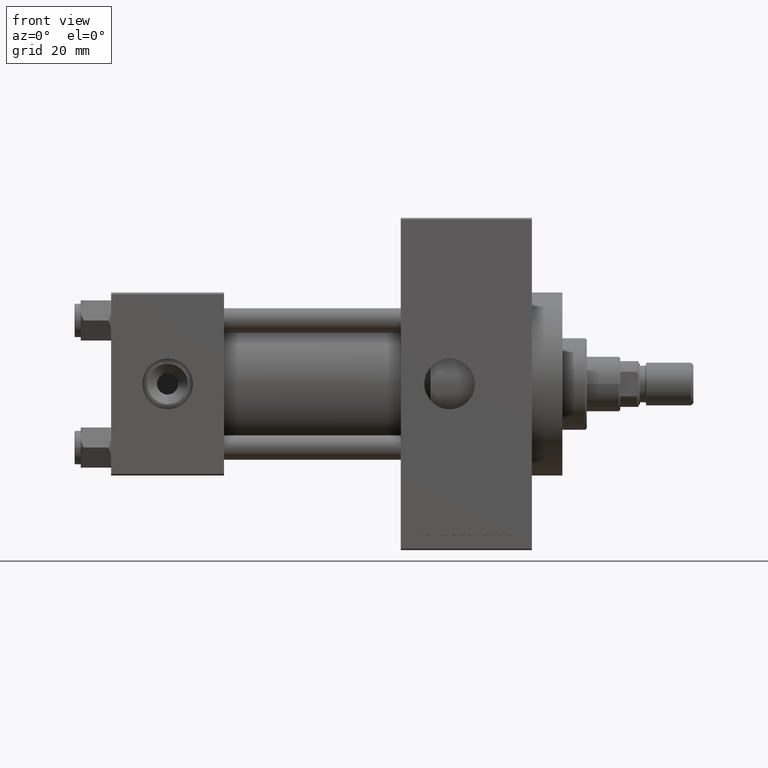
[diagram: clean part render]
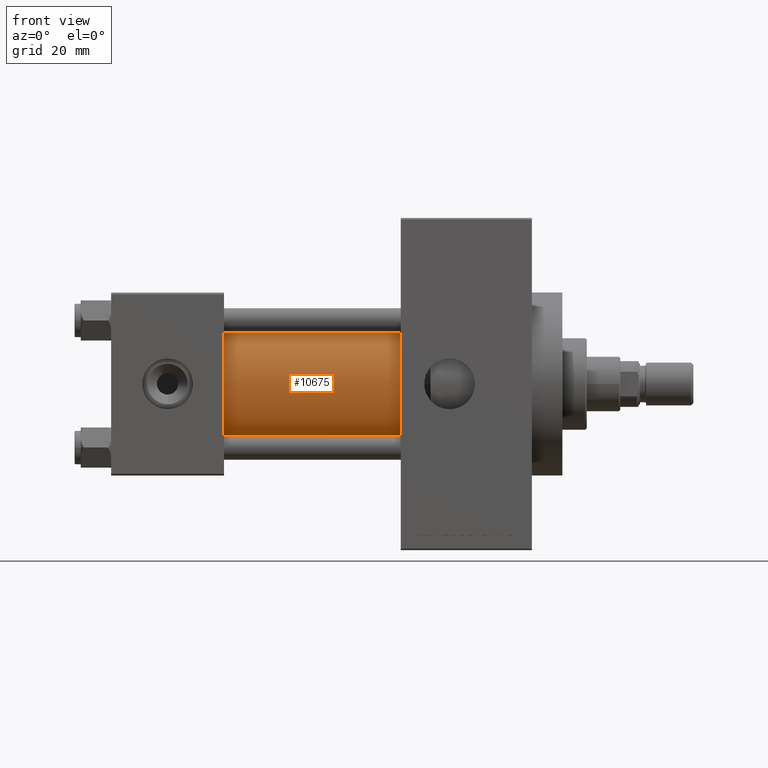
[diagram: same view with one face highlighted and labeled with its STEP entity id]
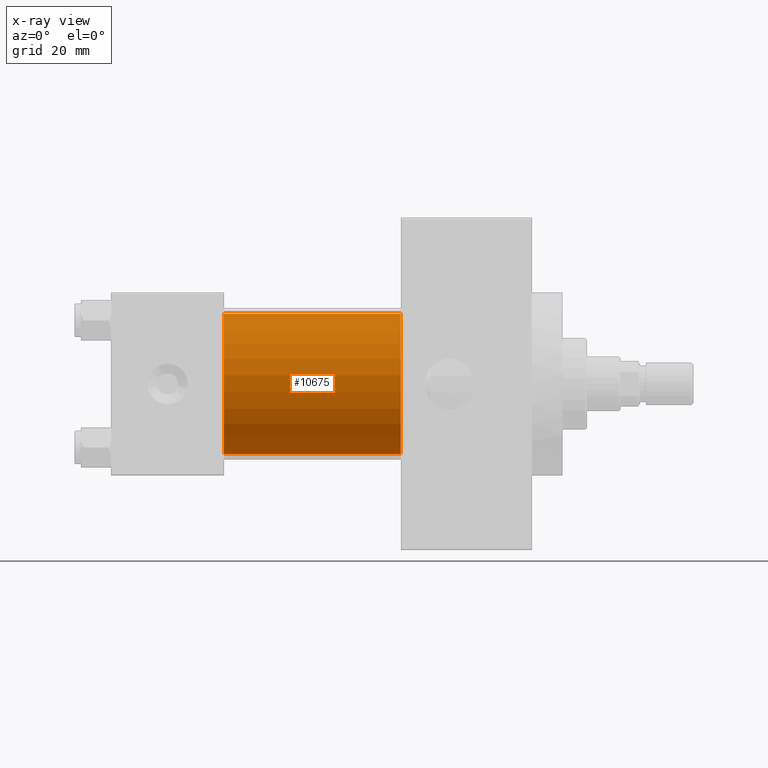
[diagram: x-ray of the same camera — body ghosted, the highlighted face saturated]
A machine part, front view. The second image highlights one B-rep face of the part: STEP entity #10675.
The next image is the same camera in x-ray: the body ghosted, the highlighted face saturated — about 0% of this face is hidden behind the body in this view.
In plain terms, the highlighted cylindrical surface (partial cylindrical patch) has radius 23 mm, axis along (-1, -0, -0).
Its self-contained STEP definition (entity closure, byte-faithful):
#2154 = ORIENTED_EDGE ( 'NONE', *, *, #40032, .F. ) ;
#3264 = VECTOR ( 'NONE', #37036, 1000.000000000000000 ) ;
#4192 = CARTESIAN_POINT ( 'NONE',  ( 95.00000000000000000, -2.602085213965210642E-15, 0.000000000000000000 ) ) ;
#4525 = DIRECTION ( 'NONE',  ( 1.000000000000000000, -0.000000000000000000, 0.000000000000000000 ) ) ;
#6715 = EDGE_LOOP ( 'NONE', ( #43450, #2154, #30871, #45339 ) ) ;
#8567 = CARTESIAN_POINT ( 'NONE',  ( 95.00000000000000000, -2.602085213965210642E-15, 0.000000000000000000 ) ) ;
#8678 = AXIS2_PLACEMENT_3D ( 'NONE', #8567, #35251, #31469 ) ;
#10590 = CARTESIAN_POINT ( 'NONE',  ( 95.00000000000000000, -2.602085213965210642E-15, 23.00000000000000000 ) ) ;
#10675 = ADVANCED_FACE ( 'NONE', ( #15254 ), #15016, .T. ) ;
#13739 = AXIS2_PLACEMENT_3D ( 'NONE', #34725, #4525, #42773 ) ;
#15016 = CYLINDRICAL_SURFACE ( 'NONE', #24098, 23.00000000000000000 ) ;
#15254 = FACE_OUTER_BOUND ( 'NONE', #6715, .T. ) ;
#21024 = CARTESIAN_POINT ( 'NONE',  ( 95.00000000000000000, 2.146024240737012665E-16, -23.00000000000000000 ) ) ;
#24098 = AXIS2_PLACEMENT_3D ( 'NONE', #4192, #46211, #30625 ) ;
#26696 = DIRECTION ( 'NONE',  ( -1.000000000000000000, -0.000000000000000000, -0.000000000000000000 ) ) ;
#30625 = DIRECTION ( 'NONE',  ( 0.000000000000000000, 0.000000000000000000, 1.000000000000000000 ) ) ;
#30733 = VERTEX_POINT ( 'NONE', #39796 ) ;
#30871 = ORIENTED_EDGE ( 'NONE', *, *, #46927, .T. ) ;
#31309 = VERTEX_POINT ( 'NONE', #21024 ) ;
#31469 = DIRECTION ( 'NONE',  ( 0.000000000000000000, 0.000000000000000000, -1.000000000000000000 ) ) ;
#31649 = CARTESIAN_POINT ( 'NONE',  ( 37.00000000000000000, 2.146024240737012665E-16, -23.00000000000000000 ) ) ;
#32517 = CARTESIAN_POINT ( 'NONE',  ( 95.00000000000000000, 2.146024240737012665E-16, -23.00000000000000000 ) ) ;
#34725 = CARTESIAN_POINT ( 'NONE',  ( 37.00000000000000000, -2.602085213965210642E-15, 0.000000000000000000 ) ) ;
#35251 = DIRECTION ( 'NONE',  ( 1.000000000000000000, 0.000000000000000000, 0.000000000000000000 ) ) ;
#35440 = CIRCLE ( 'NONE', #13739, 23.00000000000000000 ) ;
#35603 = VERTEX_POINT ( 'NONE', #31649 ) ;
#35974 = CARTESIAN_POINT ( 'NONE',  ( 37.00000000000000000, -2.602085213965210642E-15, 23.00000000000000000 ) ) ;
#37036 = DIRECTION ( 'NONE',  ( -1.000000000000000000, -0.000000000000000000, -0.000000000000000000 ) ) ;
#39796 = CARTESIAN_POINT ( 'NONE',  ( 95.00000000000000000, -2.602085213965210642E-15, 23.00000000000000000 ) ) ;
#40032 = EDGE_CURVE ( 'NONE', #30733, #31309, #42443, .T. ) ;
#40304 = VECTOR ( 'NONE', #26696, 1000.000000000000000 ) ;
#40810 = LINE ( 'NONE', #32517, #3264 ) ;
#42443 = CIRCLE ( 'NONE', #8678, 23.00000000000000000 ) ;
#42773 = DIRECTION ( 'NONE',  ( 0.000000000000000000, 0.000000000000000000, 1.000000000000000000 ) ) ;
#43450 = ORIENTED_EDGE ( 'NONE', *, *, #44496, .F. ) ;
#44496 = EDGE_CURVE ( 'NONE', #31309, #35603, #40810, .T. ) ;
#45061 = LINE ( 'NONE', #10590, #40304 ) ;
#45339 = ORIENTED_EDGE ( 'NONE', *, *, #47056, .T. ) ;
#46211 = DIRECTION ( 'NONE',  ( -1.000000000000000000, -0.000000000000000000, -0.000000000000000000 ) ) ;
#46927 = EDGE_CURVE ( 'NONE', #30733, #48558, #45061, .T. ) ;
#47056 = EDGE_CURVE ( 'NONE', #48558, #35603, #35440, .T. ) ;
#48558 = VERTEX_POINT ( 'NONE', #35974 ) ;